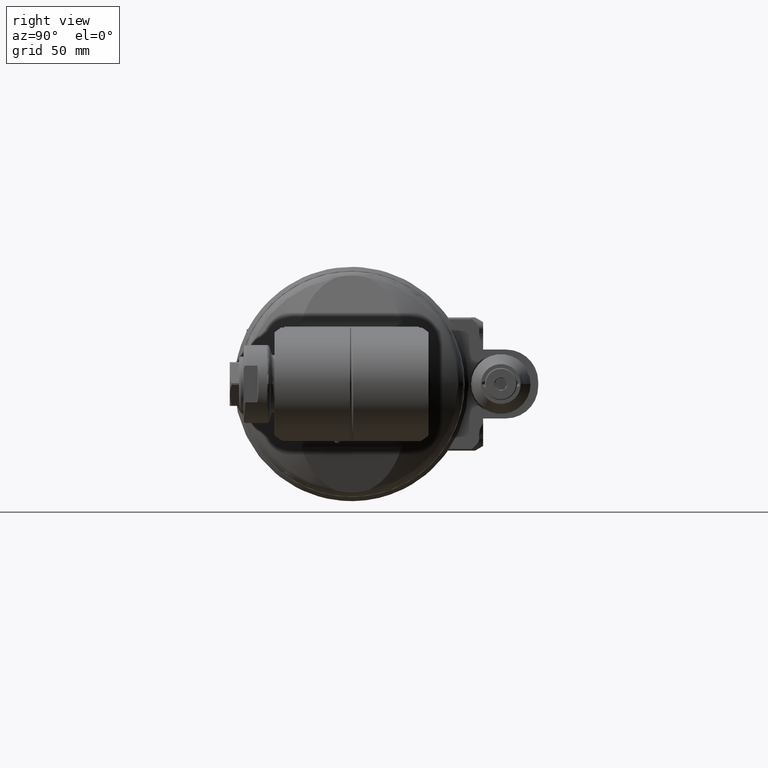
[diagram: clean part render]
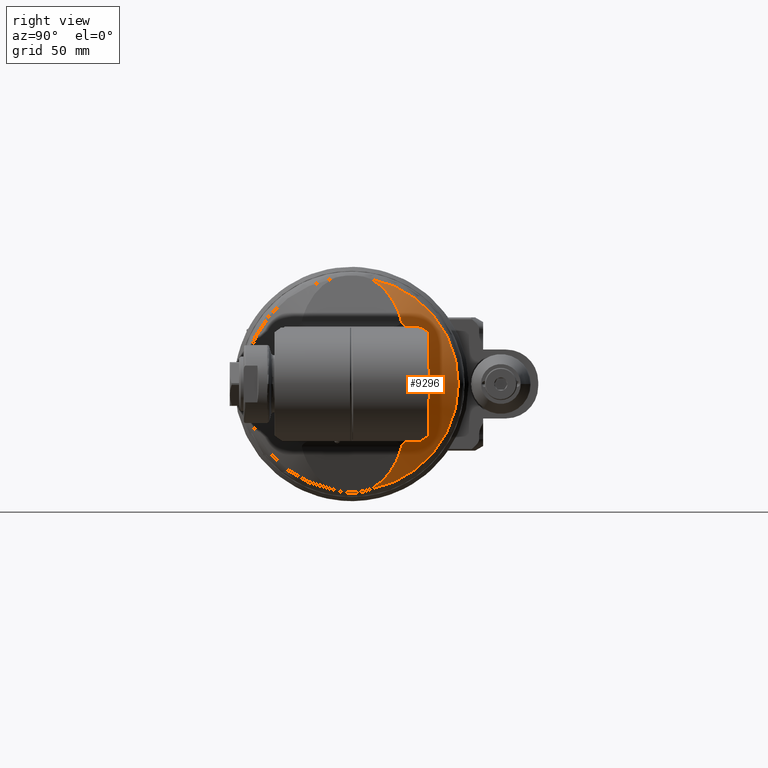
[diagram: same view with one face highlighted and labeled with its STEP entity id]
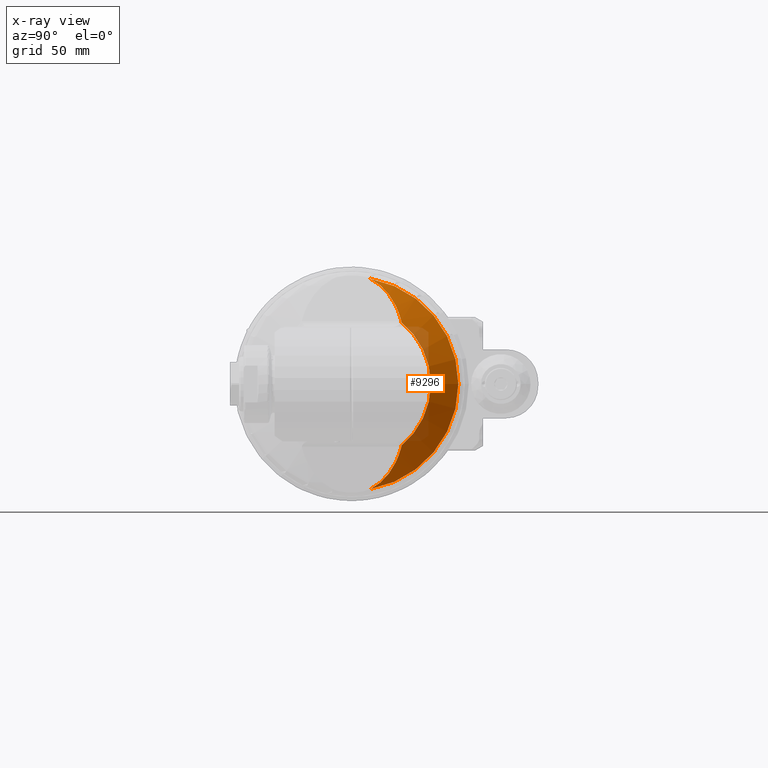
[diagram: x-ray of the same camera — body ghosted, the highlighted face saturated]
A machine part, right view. The second image highlights one B-rep face of the part: STEP entity #9296.
The next image is the same camera in x-ray: the body ghosted, the highlighted face saturated — about 11% of this face is hidden behind the body in this view.
In plain terms, the highlighted conical surface has half-angle 60 deg.
Its self-contained STEP definition (entity closure, byte-faithful):
#56=ELLIPSE('',#10016,31.1727494163443,22.7387822282697);
#58=ELLIPSE('',#10024,31.1727494163443,22.7387822282698);
#75=B_SPLINE_CURVE_WITH_KNOTS('',3,(#14389,#14390,#14391,#14392,#14393,
#14394,#14395,#14396),.UNSPECIFIED.,.F.,.F.,(4,2,2,4),(2.18673200160695,
2.19364969071324,2.22722554832336,2.26058373672803),.UNSPECIFIED.);
#78=B_SPLINE_CURVE_WITH_KNOTS('',3,(#14433,#14434,#14435,#14436,#14437,
#14438,#14439,#14440),.UNSPECIFIED.,.F.,.F.,(4,2,2,4),(2.18673200160694,
2.19364969071324,2.22722554832336,2.26058373671197),.UNSPECIFIED.);
#475=CONICAL_SURFACE('',#10025,40.5,1.0471975511966);
#2081=FACE_OUTER_BOUND('',#2688,.T.);
#2688=EDGE_LOOP('',(#6485,#6486,#6487,#6488,#6489,#6490));
#3386=CIRCLE('',#10026,46.5);
#3387=CIRCLE('',#10027,34.5);
#3953=VERTEX_POINT('',#14356);
#3956=VERTEX_POINT('',#14378);
#3958=VERTEX_POINT('',#14400);
#3963=VERTEX_POINT('',#14430);
#3964=VERTEX_POINT('',#14432);
#3967=VERTEX_POINT('',#14465);
#4935=EDGE_CURVE('',#3953,#3956,#75,.T.);
#4937=EDGE_CURVE('',#3958,#3953,#56,.T.);
#4945=EDGE_CURVE('',#3963,#3964,#78,.T.);
#4949=EDGE_CURVE('',#3967,#3963,#58,.T.);
#4951=EDGE_CURVE('',#3958,#3967,#3386,.T.);
#4952=EDGE_CURVE('',#3956,#3964,#3387,.T.);
#6485=ORIENTED_EDGE('',*,*,#4951,.F.);
#6486=ORIENTED_EDGE('',*,*,#4937,.T.);
#6487=ORIENTED_EDGE('',*,*,#4935,.T.);
#6488=ORIENTED_EDGE('',*,*,#4952,.T.);
#6489=ORIENTED_EDGE('',*,*,#4945,.F.);
#6490=ORIENTED_EDGE('',*,*,#4949,.F.);
#9296=ADVANCED_FACE('',(#2081),#475,.T.);
#10016=AXIS2_PLACEMENT_3D('',#14401,#11331,#11332);
#10024=AXIS2_PLACEMENT_3D('',#14466,#11349,#11350);
#10025=AXIS2_PLACEMENT_3D('',#14477,#11351,#11352);
#10026=AXIS2_PLACEMENT_3D('',#14478,#11353,#11354);
#10027=AXIS2_PLACEMENT_3D('',#14479,#11355,#11356);
#11331=DIRECTION('center_axis',(-0.939692620785897,0.,-0.342020143325699));
#11332=DIRECTION('ref_axis',(0.342020143325699,4.48526230226004E-15,-0.939692620785897));
#11349=DIRECTION('center_axis',(0.939692620785897,0.,-0.342020143325699));
#11350=DIRECTION('ref_axis',(-0.342020143325699,7.39186362644738E-16,-0.939692620785897));
#11351=DIRECTION('center_axis',(-1.,0.,0.));
#11352=DIRECTION('ref_axis',(0.,1.,0.));
#11353=DIRECTION('center_axis',(-1.,0.,0.));
#11354=DIRECTION('ref_axis',(0.,1.,0.));
#11355=DIRECTION('center_axis',(-1.,0.,0.));
#11356=DIRECTION('ref_axis',(0.,0.624664511069717,0.780893237651621));
#14356=CARTESIAN_POINT('',(27.04205971436,21.59708585293,27.6319194267));
#14378=CARTESIAN_POINT('',(27.37157894791,21.55092563191,26.94081669898));
#14389=CARTESIAN_POINT('Ctrl Pts',(27.0420597143565,21.5970858529229,27.6319194266969));
#14390=CARTESIAN_POINT('Ctrl Pts',(27.050335084464,21.6028999944633,27.609183034189));
#14391=CARTESIAN_POINT('Ctrl Pts',(27.0588934682952,21.608065250833,27.5863128476503));
#14392=CARTESIAN_POINT('Ctrl Pts',(27.1104686239072,21.6342180863404,27.4522888820599));
#14393=CARTESIAN_POINT('Ctrl Pts',(27.1596369835571,21.6383299644524,27.3404435454438));
#14394=CARTESIAN_POINT('Ctrl Pts',(27.2573525851501,21.617390153981,27.1409621841659));
#14395=CARTESIAN_POINT('Ctrl Pts',(27.3132347012754,21.5912369054553,27.0379800163916));
#14396=CARTESIAN_POINT('Ctrl Pts',(27.3715789479091,21.5509256318965,26.940816698985));
#14400=CARTESIAN_POINT('',(20.44337571763,8.253542184218,45.7616547058));
#14401=CARTESIAN_POINT('Origin',(30.377955770746,-1.77635683940025E-14,
18.4666203381165));
#14430=CARTESIAN_POINT('',(27.04205971436,21.59708585293,-27.6319194267));
#14432=CARTESIAN_POINT('',(27.37157894782,21.55092563201,-26.9408166991));
#14433=CARTESIAN_POINT('Ctrl Pts',(27.0420597143565,21.5970858529229,-27.6319194266969));
#14434=CARTESIAN_POINT('Ctrl Pts',(27.050335084464,21.6028999944633,-27.609183034189));
#14435=CARTESIAN_POINT('Ctrl Pts',(27.0588934682952,21.608065250833,-27.5863128476503));
#14436=CARTESIAN_POINT('Ctrl Pts',(27.1104686239072,21.6342180863404,-27.4522888820599));
#14437=CARTESIAN_POINT('Ctrl Pts',(27.1596369835571,21.6383299644524,-27.3404435454438));
#14438=CARTESIAN_POINT('Ctrl Pts',(27.2573525851267,21.6173901539861,-27.1409621842138));
#14439=CARTESIAN_POINT('Ctrl Pts',(27.3132347012214,21.5912369054813,-27.0379800164907));
#14440=CARTESIAN_POINT('Ctrl Pts',(27.3715789478246,21.5509256319549,-26.9408166991256));
#14465=CARTESIAN_POINT('',(20.44337571763,8.253542184217,-45.7616547058));
#14466=CARTESIAN_POINT('Origin',(30.377955770746,0.,-18.4666203381165));
#14477=CARTESIAN_POINT('Origin',(23.90747733277,0.,0.));
#14478=CARTESIAN_POINT('Origin',(20.44337571763,0.,0.));
#14479=CARTESIAN_POINT('Origin',(27.37157894791,0.,0.));